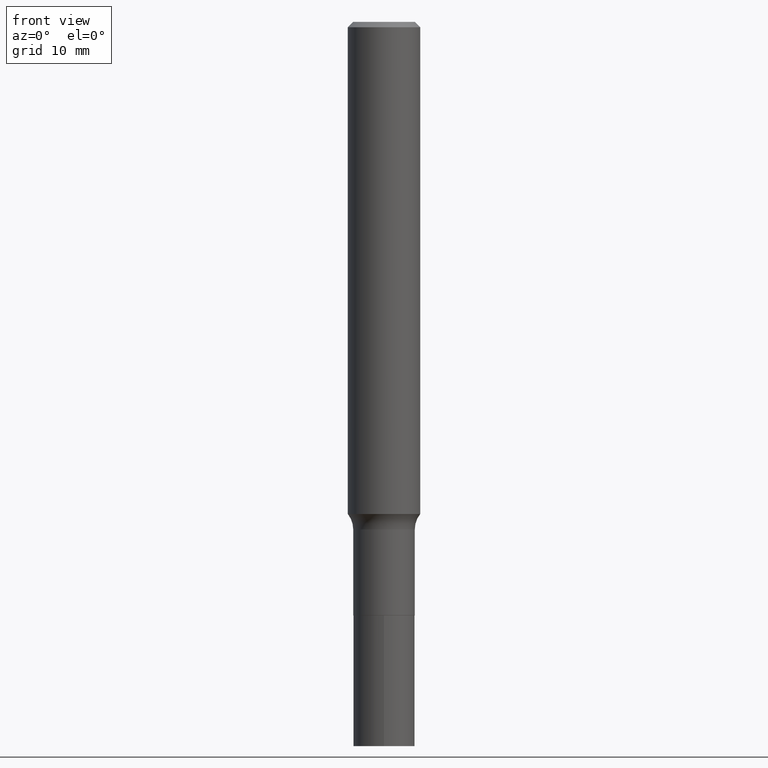
[diagram: clean part render]
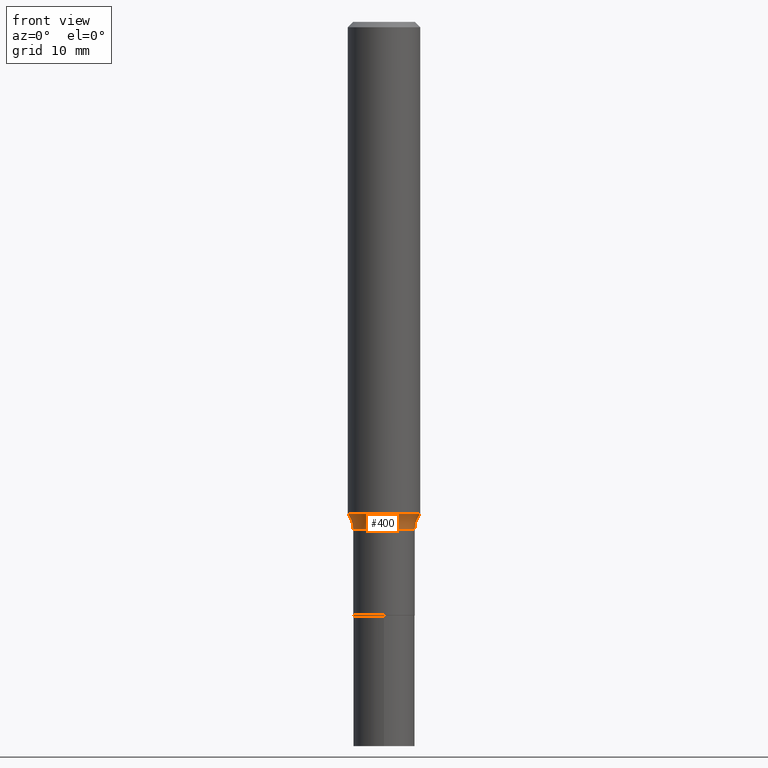
[diagram: same view with one face highlighted and labeled with its STEP entity id]
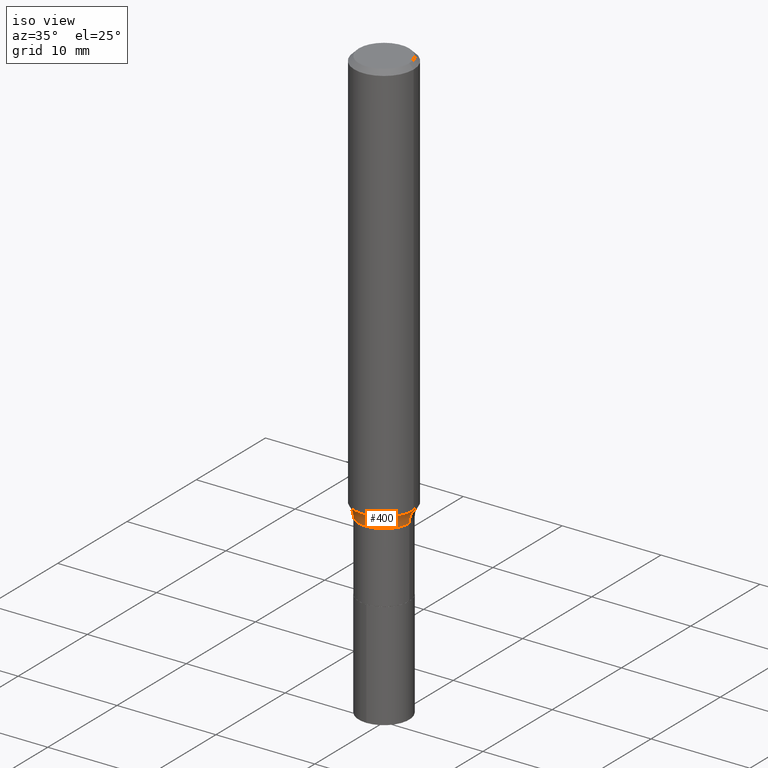
[diagram: same view with one face highlighted and labeled with its STEP entity id]
A machine part, front view. The second image highlights one B-rep face of the part: STEP entity #400.
A second angle (iso view) of the same face is appended — the face is thin or edge-on in the first view.
In plain terms, the highlighted toroidal blend (fillet) surface has major radius 4.5822 mm and minor (blend) radius 2.032 mm.
Its self-contained STEP definition (entity closure, byte-faithful):
#29 = ORIENTED_EDGE ( 'NONE', *, *, #298, .T. ) ;
#37 = AXIS2_PLACEMENT_3D ( 'NONE', #277, #386, #451 ) ;
#38 = TOROIDAL_SURFACE ( 'NONE', #200, 0.1803999999999999770, 0.07999999999999996003 ) ;
#75 = DIRECTION ( 'NONE',  ( 1.000000000000000000, -6.982962677686264344E-15, 0.000000000000000000 ) ) ;
#86 = VERTEX_POINT ( 'NONE', #126 ) ;
#105 = EDGE_CURVE ( 'NONE', #174, #450, #251, .T. ) ;
#106 = DIRECTION ( 'NONE',  ( 7.105427357601001859E-15, 1.000000000000000000, -3.491481338843145583E-15 ) ) ;
#118 = ORIENTED_EDGE ( 'NONE', *, *, #105, .F. ) ;
#125 = EDGE_CURVE ( 'NONE', #450, #181, #218, .T. ) ;
#126 = CARTESIAN_POINT ( 'NONE',  ( -0.1003999999999999754, -5.555220689055844179E-15, -1.655100000000000238 ) ) ;
#127 = EDGE_LOOP ( 'NONE', ( #118, #29, #196, #146 ) ) ;
#139 = CARTESIAN_POINT ( 'NONE',  ( -0.1803999999999999770, -4.496931668608071480E-15, -1.655100000000000238 ) ) ;
#141 = FACE_OUTER_BOUND ( 'NONE', #127, .T. ) ;
#146 = ORIENTED_EDGE ( 'NONE', *, *, #125, .F. ) ;
#174 = VERTEX_POINT ( 'NONE', #209 ) ;
#179 = AXIS2_PLACEMENT_3D ( 'NONE', #207, #236, #268 ) ;
#181 = VERTEX_POINT ( 'NONE', #339 ) ;
#182 = CARTESIAN_POINT ( 'NONE',  ( 0.1181000000000002048, -6.428212550743309629E-15, -1.604913248760255540 ) ) ;
#184 = DIRECTION ( 'NONE',  ( -2.445468806185136597E-29, 3.491481338843145583E-15, 1.000000000000000000 ) ) ;
#191 = AXIS2_PLACEMENT_3D ( 'NONE', #462, #324, #75 ) ;
#196 = ORIENTED_EDGE ( 'NONE', *, *, #283, .T. ) ;
#200 = AXIS2_PLACEMENT_3D ( 'NONE', #284, #184, #428 ) ;
#207 = CARTESIAN_POINT ( 'NONE',  ( 3.924765286476451324E-29, -5.603524658508559788E-15, -1.604913248760255540 ) ) ;
#209 = CARTESIAN_POINT ( 'NONE',  ( -0.1181000000000002048, -4.764373687575879225E-15, -1.604913248760255540 ) ) ;
#218 = CIRCLE ( 'NONE', #37, 0.07999999999999996003 ) ;
#236 = DIRECTION ( 'NONE',  ( -2.445468806185136597E-29, 3.491481338843145583E-15, 1.000000000000000000 ) ) ;
#251 = CIRCLE ( 'NONE', #179, 0.1181000000000002048 ) ;
#268 = DIRECTION ( 'NONE',  ( 1.000000000000000000, -6.982962677686268288E-15, 0.000000000000000000 ) ) ;
#277 = CARTESIAN_POINT ( 'NONE',  ( 0.1803999999999999770, -7.038477230973894190E-15, -1.655100000000000238 ) ) ;
#283 = EDGE_CURVE ( 'NONE', #86, #181, #432, .T. ) ;
#284 = CARTESIAN_POINT ( 'NONE',  ( 4.047495421117020390E-29, -5.778750763919291461E-15, -1.655100000000000238 ) ) ;
#298 = EDGE_CURVE ( 'NONE', #174, #86, #364, .T. ) ;
#324 = DIRECTION ( 'NONE',  ( -2.445468806185136597E-29, 3.491481338843145583E-15, 1.000000000000000000 ) ) ;
#339 = CARTESIAN_POINT ( 'NONE',  ( 0.1003999999999999754, -6.479840216758992537E-15, -1.655100000000000238 ) ) ;
#364 = CIRCLE ( 'NONE', #425, 0.07999999999999996003 ) ;
#386 = DIRECTION ( 'NONE',  ( -6.982962677686266711E-15, -1.000000000000000000, 3.491481338843145583E-15 ) ) ;
#387 = DIRECTION ( 'NONE',  ( -1.000000000000000000, 7.105427357601001859E-15, 0.000000000000000000 ) ) ;
#400 = ADVANCED_FACE ( 'NONE', ( #141 ), #38, .F. ) ;
#425 = AXIS2_PLACEMENT_3D ( 'NONE', #139, #106, #387 ) ;
#428 = DIRECTION ( 'NONE',  ( 1.000000000000000000, -6.982962677686266711E-15, 4.883557194083112901E-29 ) ) ;
#432 = CIRCLE ( 'NONE', #191, 0.1003999999999999754 ) ;
#450 = VERTEX_POINT ( 'NONE', #182 ) ;
#451 = DIRECTION ( 'NONE',  ( 1.000000000000000000, -6.982962677686262766E-15, 0.000000000000000000 ) ) ;
#462 = CARTESIAN_POINT ( 'NONE',  ( 4.047495421117020390E-29, -5.778750763919291461E-15, -1.655100000000000238 ) ) ;